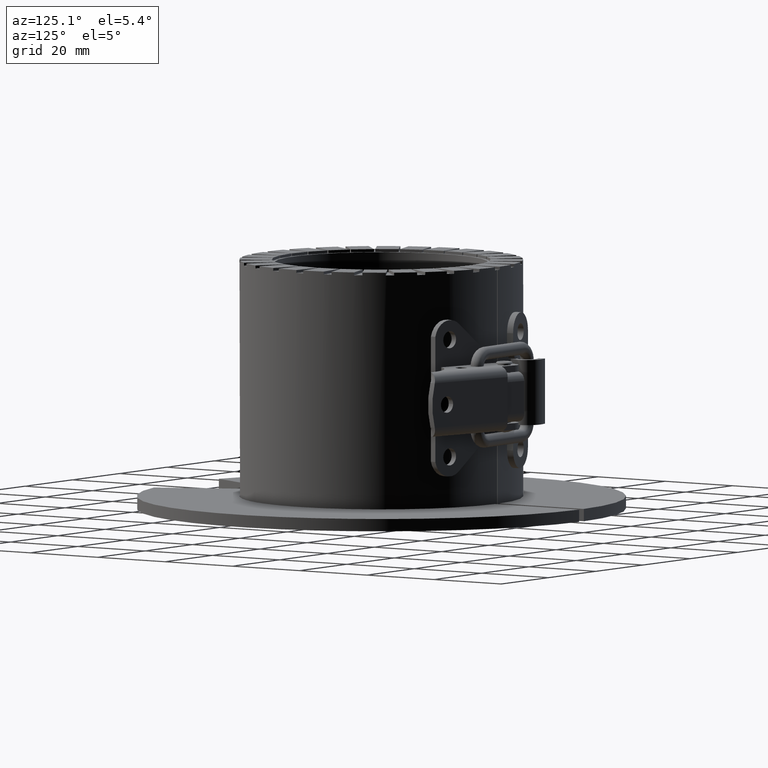
[diagram: clean part render]
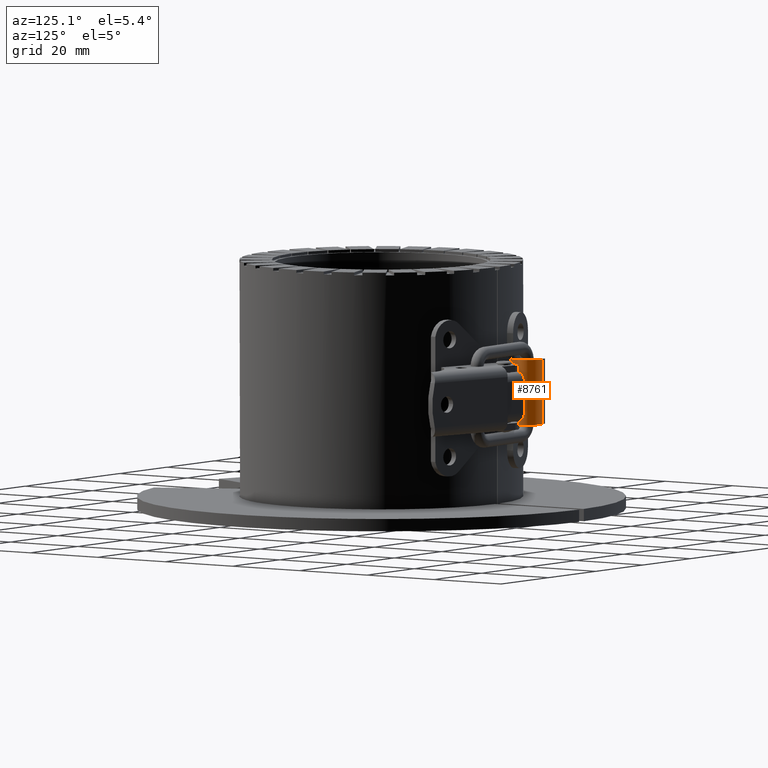
[diagram: same view with one face highlighted and labeled with its STEP entity id]
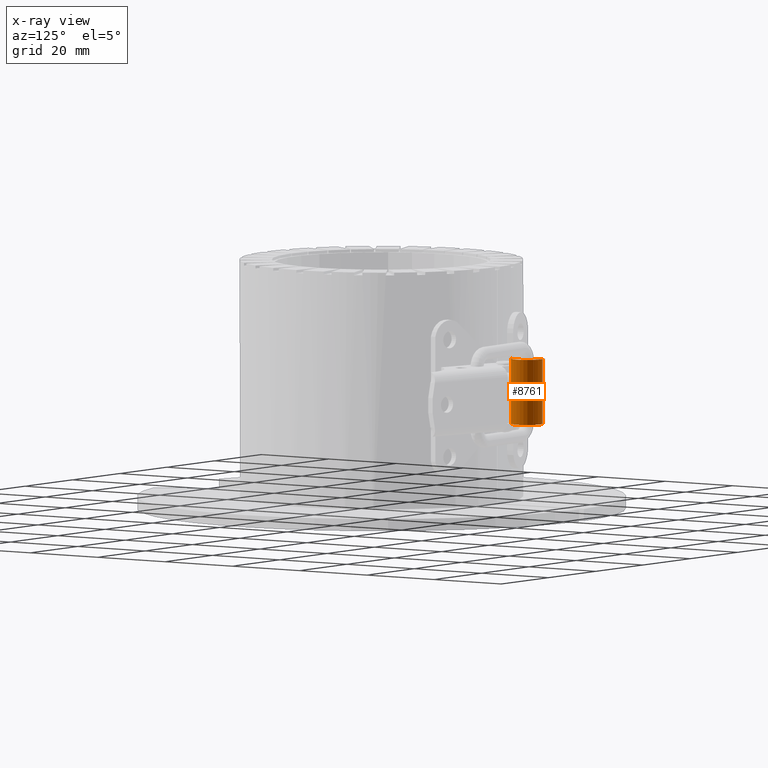
[diagram: x-ray of the same camera — body ghosted, the highlighted face saturated]
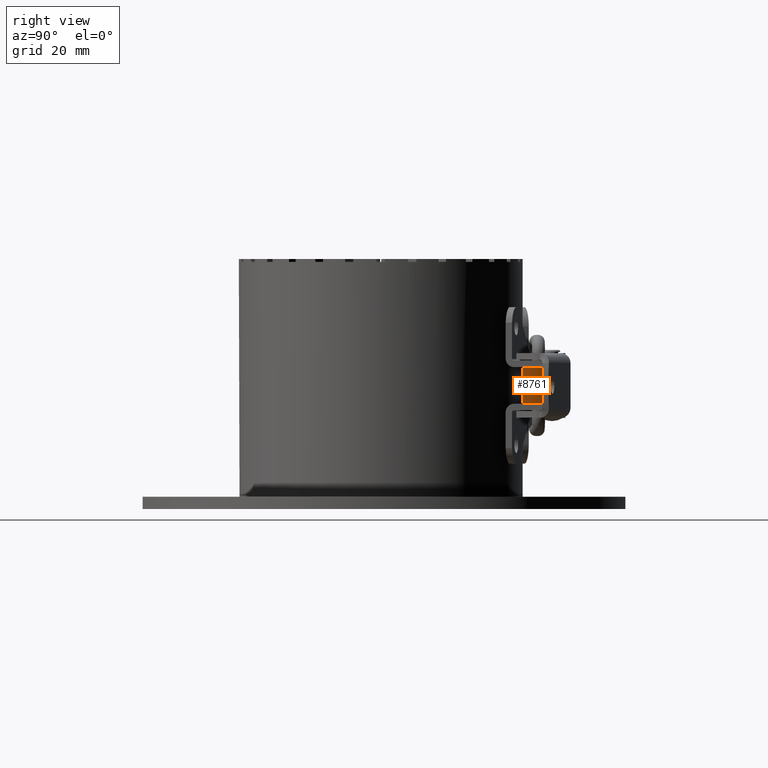
[diagram: same view with one face highlighted and labeled with its STEP entity id]
A machine part, auxiliary view. The second image highlights one B-rep face of the part: STEP entity #8761.
The next image is the same camera in x-ray: the body ghosted, the highlighted face saturated — about 0% of this face is hidden behind the body in this view.
A second angle (right view) of the same face is appended — the face is thin or edge-on in the first view.
In plain terms, the highlighted cylindrical surface (edge-blend (fillet) strip) has radius 4 mm, axis along (0, -0, 1).
Its self-contained STEP definition (entity closure, byte-faithful):
#8401=CARTESIAN_POINT('',(-7.227213111420932,33.737037973835143,-7.949999999999995));
#8402=VERTEX_POINT('',#8401);
#8409=CARTESIAN_POINT('',(-7.227213111420933,33.737037973835143,7.950000000000008));
#8410=VERTEX_POINT('',#8409);
#8411=CARTESIAN_POINT('',(-7.227213111420932,33.737037973835143,-7.949999999999995));
#8412=DIRECTION('',(0.0,0.0,1.0));
#8413=VECTOR('',#8412,15.9);
#8414=LINE('',#8411,#8413);
#8415=EDGE_CURVE('',#8402,#8410,#8414,.T.);
#8532=CARTESIAN_POINT('',(-5.26909778424695,34.823934659196553,-7.949999999999995));
#8533=VERTEX_POINT('',#8532);
#8713=CARTESIAN_POINT('',(-8.111818014151758,37.637996082564925,-7.949999999999995));
#8714=DIRECTION('',(5.043443E-018,-1.134815E-016,1.0));
#8715=DIRECTION('',(-0.221151225682707,0.975239527182444,1.117870E-016));
#8716=AXIS2_PLACEMENT_3D('',#8713,#8714,#8715);
#8717=CYLINDRICAL_SURFACE('',#8716,4.0);
#8718=CARTESIAN_POINT('',(-8.996422916882583,41.538954191294692,7.950000000000008));
#8719=VERTEX_POINT('',#8718);
#8720=CARTESIAN_POINT('',(-5.26909778424695,34.823934659196553,7.950000000000008));
#8721=VERTEX_POINT('',#8720);
#8722=CARTESIAN_POINT('',(-8.111818014151758,37.637996082564925,7.950000000000008));
#8723=DIRECTION('',(-2.472183E-017,1.090191E-016,-1.0));
#8724=DIRECTION('',(0.221151225682707,-0.975239527182444,-1.117870E-016));
#8725=AXIS2_PLACEMENT_3D('',#8722,#8723,#8724);
#8726=CIRCLE('',#8725,4.0);
#8727=EDGE_CURVE('',#8719,#8721,#8726,.T.);
#8728=ORIENTED_EDGE('',*,*,#8727,.T.);
#8729=CARTESIAN_POINT('',(-8.111818014151758,37.637996082564925,7.950000000000008));
#8730=DIRECTION('',(-2.472183E-017,1.090191E-016,-1.0));
#8731=DIRECTION('',(0.221151225682707,-0.975239527182444,-1.117870E-016));
#8732=AXIS2_PLACEMENT_3D('',#8729,#8730,#8731);
#8733=CIRCLE('',#8732,4.0);
#8734=EDGE_CURVE('',#8721,#8410,#8733,.T.);
#8735=ORIENTED_EDGE('',*,*,#8734,.T.);
#8736=ORIENTED_EDGE('',*,*,#8415,.F.);
#8737=CARTESIAN_POINT('',(-8.111818014151758,37.637996082564925,-7.949999999999995));
#8738=DIRECTION('',(-2.472183E-017,1.090191E-016,-1.0));
#8739=DIRECTION('',(0.221151225682707,-0.975239527182444,-1.117870E-016));
#8740=AXIS2_PLACEMENT_3D('',#8737,#8738,#8739);
#8741=CIRCLE('',#8740,4.0);
#8742=EDGE_CURVE('',#8533,#8402,#8741,.T.);
#8743=ORIENTED_EDGE('',*,*,#8742,.F.);
#8744=CARTESIAN_POINT('',(-8.996422916882583,41.538954191294692,-7.949999999999995));
#8745=VERTEX_POINT('',#8744);
#8746=CARTESIAN_POINT('',(-8.111818014151758,37.637996082564925,-7.949999999999995));
#8747=DIRECTION('',(-2.472183E-017,1.090191E-016,-1.0));
#8748=DIRECTION('',(0.221151225682707,-0.975239527182444,-1.117870E-016));
#8749=AXIS2_PLACEMENT_3D('',#8746,#8747,#8748);
#8750=CIRCLE('',#8749,4.0);
#8751=EDGE_CURVE('',#8745,#8533,#8750,.T.);
#8752=ORIENTED_EDGE('',*,*,#8751,.F.);
#8753=CARTESIAN_POINT('',(-8.996422916882583,41.538954191294692,-7.949999999999995));
#8754=DIRECTION('',(0.0,0.0,1.0));
#8755=VECTOR('',#8754,15.9);
#8756=LINE('',#8753,#8755);
#8757=EDGE_CURVE('',#8745,#8719,#8756,.T.);
#8758=ORIENTED_EDGE('',*,*,#8757,.T.);
#8759=EDGE_LOOP('',(#8728,#8735,#8736,#8743,#8752,#8758));
#8760=FACE_OUTER_BOUND('',#8759,.T.);
#8761=ADVANCED_FACE('',(#8760),#8717,.T.);